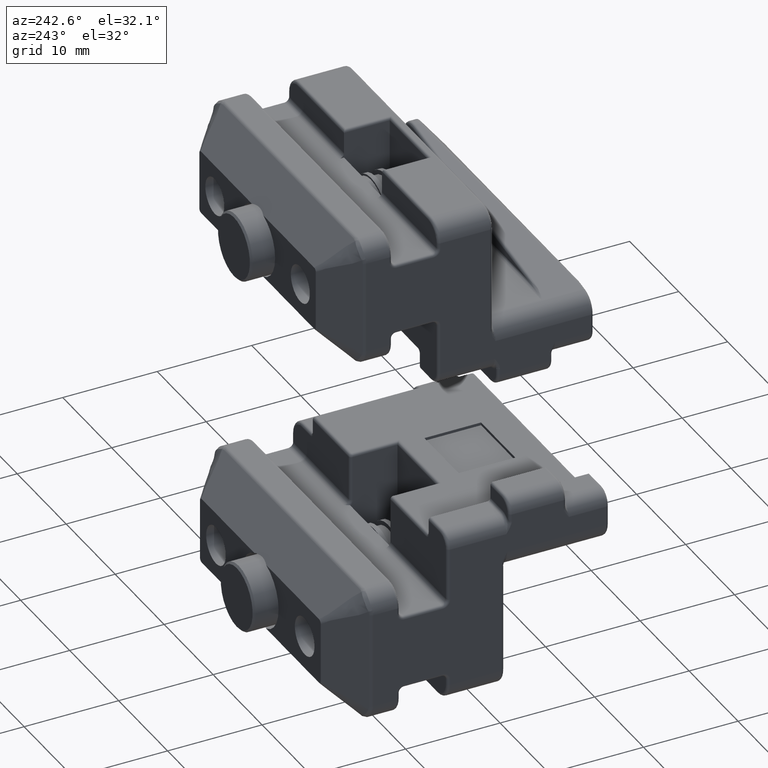
[diagram: clean part render]
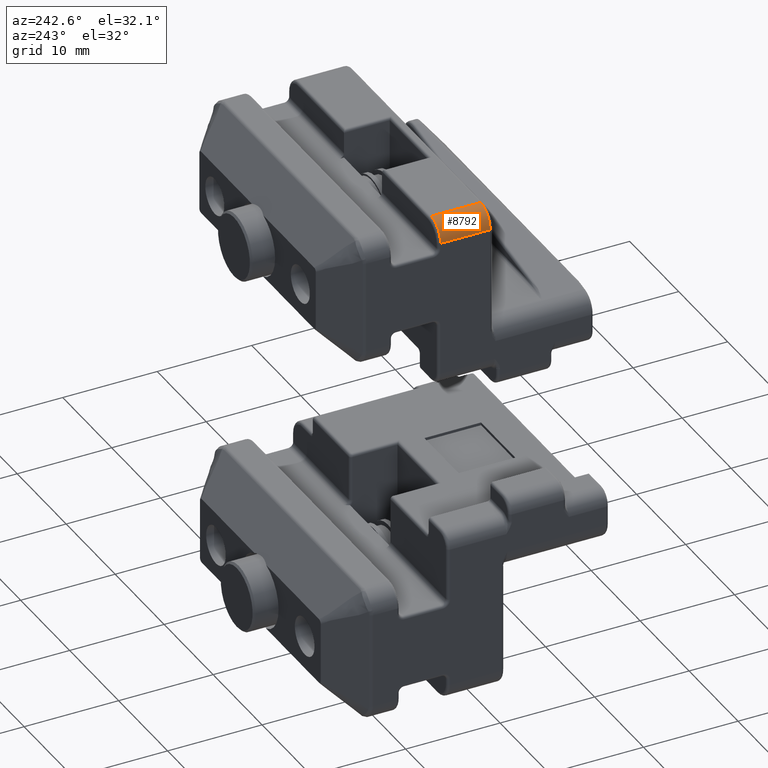
[diagram: same view with one face highlighted and labeled with its STEP entity id]
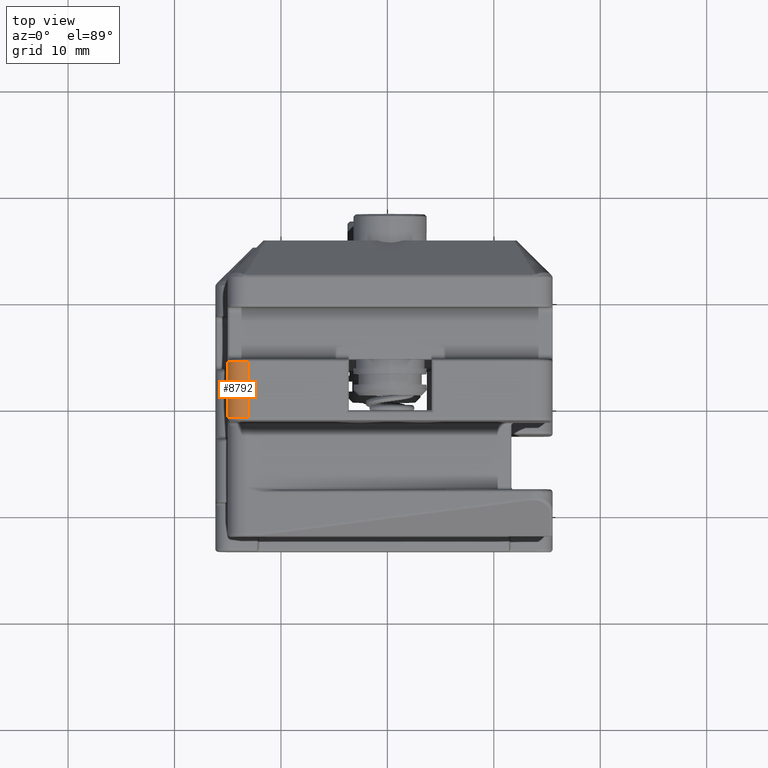
[diagram: same view with one face highlighted and labeled with its STEP entity id]
A machine part, auxiliary view. The second image highlights one B-rep face of the part: STEP entity #8792.
A second angle (top view) of the same face is appended — the face is thin or edge-on in the first view.
In plain terms, the highlighted cylindrical surface (edge-blend (fillet) strip) has radius 1.94 mm, axis along (0, -1, 0).
Its self-contained STEP definition (entity closure, byte-faithful):
#130 = DIRECTION ( 'NONE',  ( -0.0000000000000000000, 1.000000000000000000, -0.0000000000000000000 ) ) ;
#369 = CARTESIAN_POINT ( 'NONE',  ( -113.0891978571563200, 48.48620507557524200, -13.47331073726552800 ) ) ;
#535 = VERTEX_POINT ( 'NONE', #369 ) ;
#1021 = ORIENTED_EDGE ( 'NONE', *, *, #20440, .T. ) ;
#1234 = DIRECTION ( 'NONE',  ( 0.0000000000000000000, -1.000000000000000000, 0.0000000000000000000 ) ) ;
#1509 = DIRECTION ( 'NONE',  ( 0.0000000000000000000, 0.0000000000000000000, -1.000000000000000000 ) ) ;
#1733 = CARTESIAN_POINT ( 'NONE',  ( -113.0891978571563200, 53.72420507557524200, -15.41331073726553000 ) ) ;
#2235 = EDGE_CURVE ( 'NONE', #535, #22612, #16228, .T. ) ;
#2387 = CIRCLE ( 'NONE', #3745, 1.940000000000000800 ) ;
#2983 = ORIENTED_EDGE ( 'NONE', *, *, #2235, .F. ) ;
#3386 = DIRECTION ( 'NONE',  ( -0.0000000000000000000, -1.000000000000000000, -0.0000000000000000000 ) ) ;
#3411 = DIRECTION ( 'NONE',  ( 0.0000000000000000000, 0.0000000000000000000, -1.000000000000000000 ) ) ;
#3549 = CARTESIAN_POINT ( 'NONE',  ( -113.0891978571563200, 48.48620507557524200, -15.41331073726553300 ) ) ;
#3745 = AXIS2_PLACEMENT_3D ( 'NONE', #1733, #1234, #1509 ) ;
#4563 = EDGE_CURVE ( 'NONE', #16838, #26954, #2387, .T. ) ;
#4869 = FACE_OUTER_BOUND ( 'NONE', #24122, .T. ) ;
#7490 = EDGE_CURVE ( 'NONE', #26954, #22612, #26205, .T. ) ;
#8792 = ADVANCED_FACE ( 'NONE', ( #4869 ), #20463, .T. ) ;
#12235 = CARTESIAN_POINT ( 'NONE',  ( -113.0891978571563200, 48.19520507557524500, -13.47331073726552800 ) ) ;
#13219 = ORIENTED_EDGE ( 'NONE', *, *, #7490, .T. ) ;
#13766 = ORIENTED_EDGE ( 'NONE', *, *, #4563, .T. ) ;
#15200 = LINE ( 'NONE', #12235, #24104 ) ;
#16228 = CIRCLE ( 'NONE', #25301, 1.940000000000000800 ) ;
#16838 = VERTEX_POINT ( 'NONE', #30603 ) ;
#17832 = CARTESIAN_POINT ( 'NONE',  ( -115.0291978571563200, 48.48620507557524200, -15.41331073726553100 ) ) ;
#20440 = EDGE_CURVE ( 'NONE', #535, #16838, #15200, .T. ) ;
#20463 = CYLINDRICAL_SURFACE ( 'NONE', #30527, 1.940000000000000800 ) ;
#21702 = CARTESIAN_POINT ( 'NONE',  ( -115.0291978571563200, 53.72420507557524200, -15.41331073726553000 ) ) ;
#22612 = VERTEX_POINT ( 'NONE', #17832 ) ;
#24104 = VECTOR ( 'NONE', #130, 1000.000000000000000 ) ;
#24122 = EDGE_LOOP ( 'NONE', ( #1021, #13766, #13219, #2983 ) ) ;
#24661 = VECTOR ( 'NONE', #31012, 1000.000000000000000 ) ;
#25301 = AXIS2_PLACEMENT_3D ( 'NONE', #3549, #3386, #3411 ) ;
#26205 = LINE ( 'NONE', #30098, #24661 ) ;
#26954 = VERTEX_POINT ( 'NONE', #21702 ) ;
#28782 = DIRECTION ( 'NONE',  ( 0.0000000000000000000, 0.0000000000000000000, -1.000000000000000000 ) ) ;
#30098 = CARTESIAN_POINT ( 'NONE',  ( -115.0291978571563200, 48.19520507557524500, -15.41331073726553000 ) ) ;
#30527 = AXIS2_PLACEMENT_3D ( 'NONE', #30730, #30838, #28782 ) ;
#30603 = CARTESIAN_POINT ( 'NONE',  ( -113.0891978571563200, 53.72420507557524200, -13.47331073726552800 ) ) ;
#30730 = CARTESIAN_POINT ( 'NONE',  ( -113.0891978571563200, 48.19520507557524500, -15.41331073726553000 ) ) ;
#30838 = DIRECTION ( 'NONE',  ( 0.0000000000000000000, -1.000000000000000000, 0.0000000000000000000 ) ) ;
#31012 = DIRECTION ( 'NONE',  ( 0.0000000000000000000, -1.000000000000000000, 0.0000000000000000000 ) ) ;